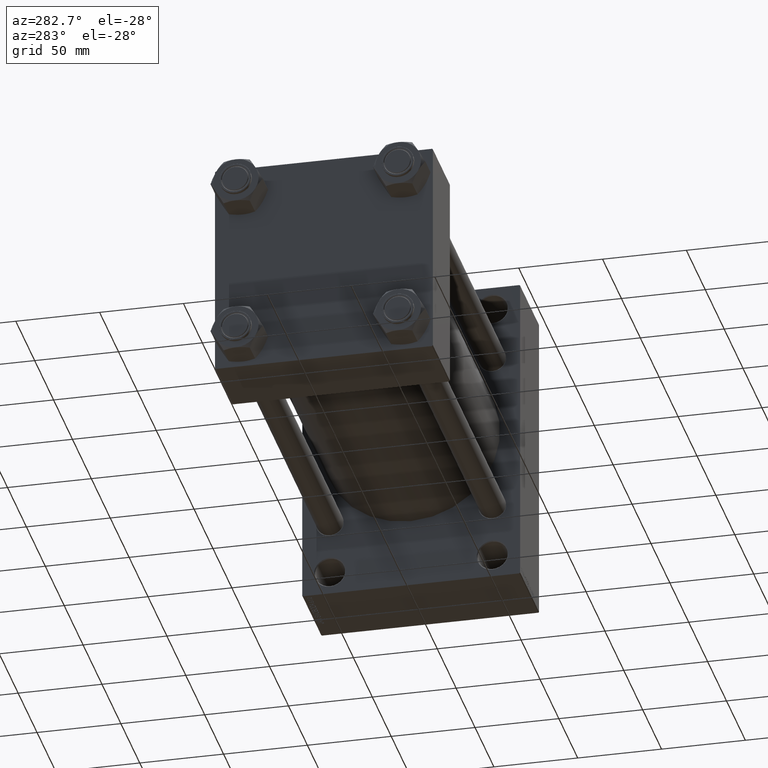
[diagram: clean part render]
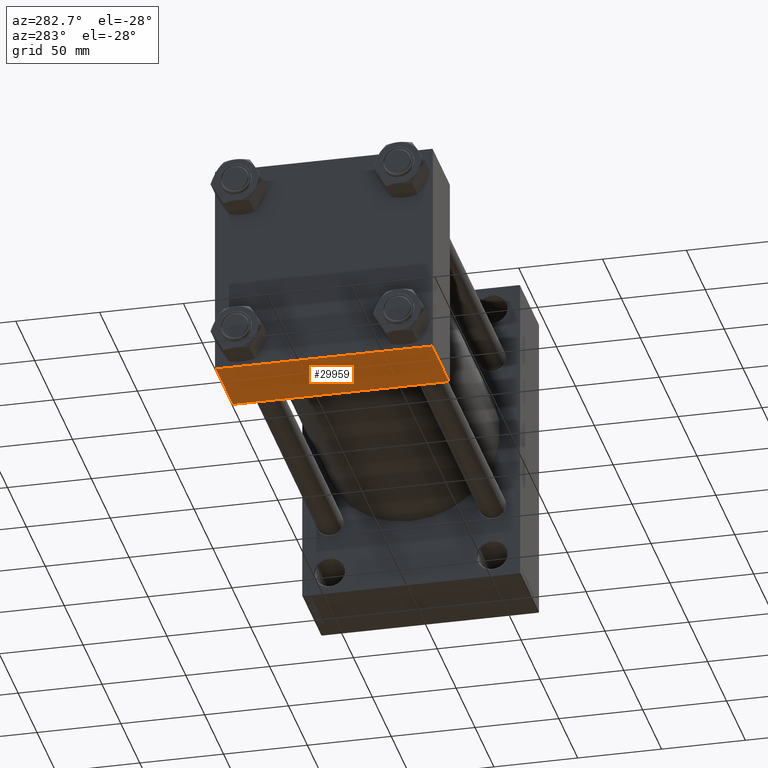
[diagram: same view with one face highlighted and labeled with its STEP entity id]
A machine part, auxiliary view. The second image highlights one B-rep face of the part: STEP entity #29959.
In plain terms, the highlighted planar face has unit normal (0, 0, -1).
Its self-contained STEP definition (entity closure, byte-faithful):
#1892 = ORIENTED_EDGE ( 'NONE', *, *, #6441, .T. ) ;
#3665 = LINE ( 'NONE', #24942, #37808 ) ;
#4380 = EDGE_CURVE ( 'NONE', #10030, #46932, #9496, .T. ) ;
#4426 = CARTESIAN_POINT ( 'NONE',  ( 45.00000000000000000, -64.49999999999994316, -65.00000000000000000 ) ) ;
#4857 = EDGE_CURVE ( 'NONE', #10030, #44388, #43684, .T. ) ;
#5295 = VECTOR ( 'NONE', #12587, 1000.000000000000000 ) ;
#6441 = EDGE_CURVE ( 'NONE', #44388, #19064, #45888, .T. ) ;
#8283 = DIRECTION ( 'NONE',  ( 0.000000000000000000, 1.000000000000000000, 1.067522139062650548E-16 ) ) ;
#8520 = PLANE ( 'NONE',  #9099 ) ;
#9099 = AXIS2_PLACEMENT_3D ( 'NONE', #30268, #26633, #8283 ) ;
#9496 = LINE ( 'NONE', #31457, #41447 ) ;
#10030 = VERTEX_POINT ( 'NONE', #32778 ) ;
#11401 = VECTOR ( 'NONE', #39591, 1000.000000000000000 ) ;
#12587 = DIRECTION ( 'NONE',  ( 0.000000000000000000, -1.000000000000000000, -1.067522139062650425E-16 ) ) ;
#19064 = VERTEX_POINT ( 'NONE', #4426 ) ;
#19645 = DIRECTION ( 'NONE',  ( 0.000000000000000000, -1.000000000000000000, -1.067522139062650425E-16 ) ) ;
#21121 = ORIENTED_EDGE ( 'NONE', *, *, #4857, .T. ) ;
#22969 = CARTESIAN_POINT ( 'NONE',  ( 45.00000000000000000, 65.00000000000000000, -64.99999999999998579 ) ) ;
#23183 = CARTESIAN_POINT ( 'NONE',  ( 45.00000000000000000, 64.49999999999997158, -64.99999999999998579 ) ) ;
#24384 = ORIENTED_EDGE ( 'NONE', *, *, #4380, .F. ) ;
#24942 = CARTESIAN_POINT ( 'NONE',  ( 0.000000000000000000, -64.49999999999994316, -65.00000000000000000 ) ) ;
#25339 = CARTESIAN_POINT ( 'NONE',  ( 45.00000000000000000, 64.49999999999997158, -64.99999999999998579 ) ) ;
#26633 = DIRECTION ( 'NONE',  ( 0.000000000000000000, 1.067522139062650548E-16, -1.000000000000000000 ) ) ;
#27342 = CARTESIAN_POINT ( 'NONE',  ( 0.000000000000000000, -64.49999999999994316, -65.00000000000000000 ) ) ;
#29959 = ADVANCED_FACE ( 'NONE', ( #45211 ), #8520, .T. ) ;
#30268 = CARTESIAN_POINT ( 'NONE',  ( 45.00000000000000000, 65.00000000000000000, -64.99999999999998579 ) ) ;
#30889 = EDGE_LOOP ( 'NONE', ( #24384, #21121, #1892, #39143 ) ) ;
#31457 = CARTESIAN_POINT ( 'NONE',  ( 0.000000000000000000, 65.00000000000000000, -64.99999999999998579 ) ) ;
#32778 = CARTESIAN_POINT ( 'NONE',  ( 0.000000000000000000, 64.49999999999997158, -64.99999999999998579 ) ) ;
#37808 = VECTOR ( 'NONE', #39652, 1000.000000000000000 ) ;
#39143 = ORIENTED_EDGE ( 'NONE', *, *, #39285, .T. ) ;
#39285 = EDGE_CURVE ( 'NONE', #19064, #46932, #3665, .T. ) ;
#39591 = DIRECTION ( 'NONE',  ( 1.000000000000000000, 0.000000000000000000, 0.000000000000000000 ) ) ;
#39652 = DIRECTION ( 'NONE',  ( -1.000000000000000000, 0.000000000000000000, 0.000000000000000000 ) ) ;
#41447 = VECTOR ( 'NONE', #19645, 1000.000000000000000 ) ;
#43684 = LINE ( 'NONE', #25339, #11401 ) ;
#44388 = VERTEX_POINT ( 'NONE', #23183 ) ;
#45211 = FACE_OUTER_BOUND ( 'NONE', #30889, .T. ) ;
#45888 = LINE ( 'NONE', #22969, #5295 ) ;
#46932 = VERTEX_POINT ( 'NONE', #27342 ) ;